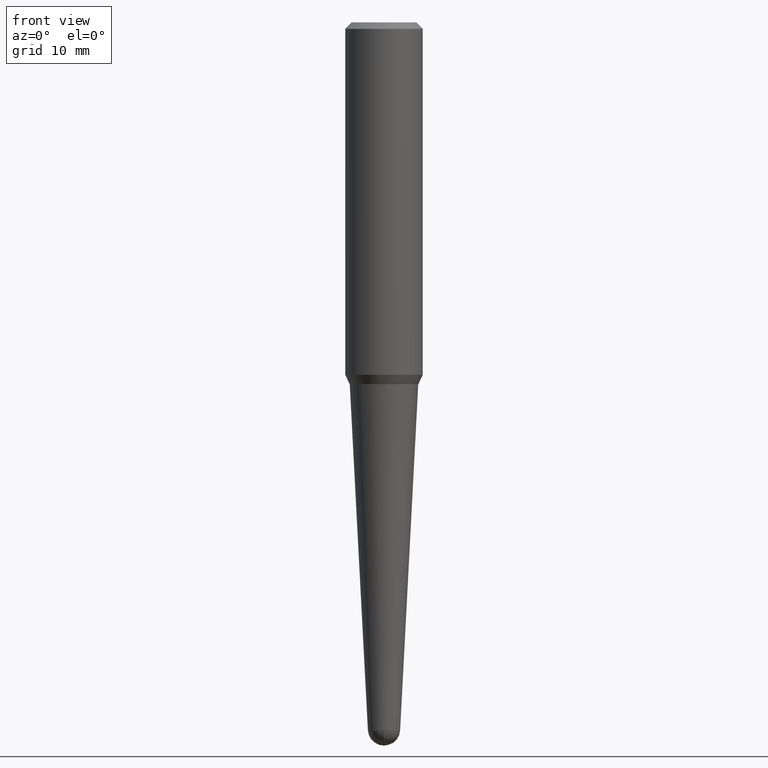
[diagram: clean part render]
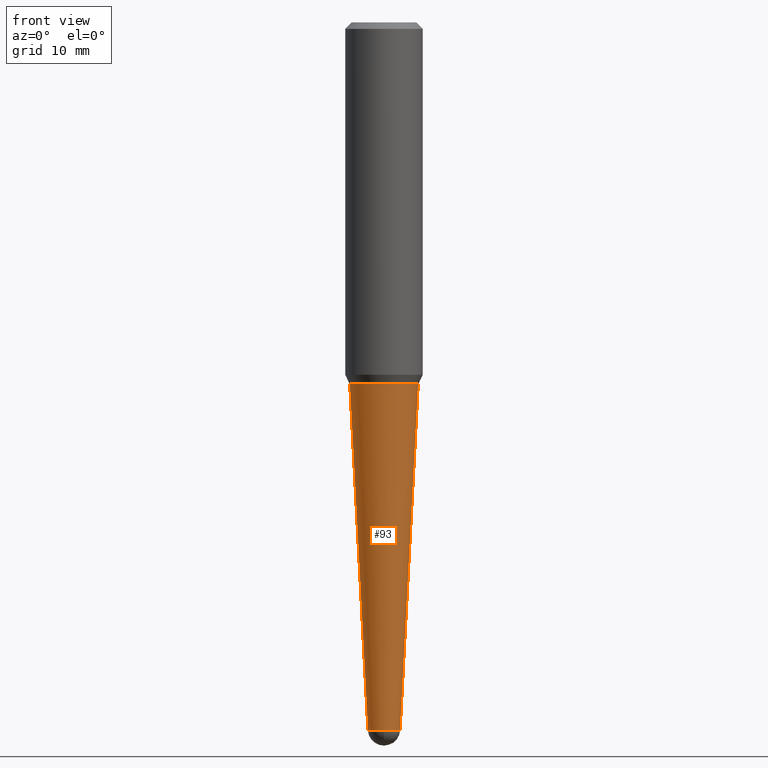
[diagram: same view with one face highlighted and labeled with its STEP entity id]
A machine part, front view. The second image highlights one B-rep face of the part: STEP entity #93.
In plain terms, the highlighted conical surface has half-angle 3 deg.
Its self-contained STEP definition (entity closure, byte-faithful):
#16 = ORIENTED_EDGE ( 'NONE', *, *, #79, .F. ) ;
#23 = VERTEX_POINT ( 'NONE', #306 ) ;
#30 = CARTESIAN_POINT ( 'NONE',  ( -0.1658277464057546224, -4.931815337014735557E-15, -1.750000000000000000 ) ) ;
#33 = DIRECTION ( 'NONE',  ( -2.445468806185136597E-29, 3.491481338843145583E-15, 1.000000000000000000 ) ) ;
#41 = DIRECTION ( 'NONE',  ( -0.05233595624294384158, 3.858565720288028779E-15, 0.9986295347545738332 ) ) ;
#49 = DIRECTION ( 'NONE',  ( -2.445468806185136597E-29, 3.491481338843145583E-15, 1.000000000000000000 ) ) ;
#77 = CARTESIAN_POINT ( 'NONE',  ( -0.07799296666433265524, -1.140759784848827963E-14, -3.425987438182573896 ) ) ;
#79 = EDGE_CURVE ( 'NONE', #381, #357, #443, .T. ) ;
#82 = DIRECTION ( 'NONE',  ( 1.000000000000000000, -6.982962677686263555E-15, 0.000000000000000000 ) ) ;
#84 = VECTOR ( 'NONE', #354, 39.37007874015748854 ) ;
#91 = VERTEX_POINT ( 'NONE', #408 ) ;
#92 = CARTESIAN_POINT ( 'NONE',  ( 8.378145410457613452E-29, -1.196177120752549174E-14, -3.425987438182573896 ) ) ;
#93 = ADVANCED_FACE ( 'NONE', ( #348 ), #298, .T. ) ;
#94 = CARTESIAN_POINT ( 'NONE',  ( 0.1658277464057546224, -7.268061307051711819E-15, -1.750000000000000000 ) ) ;
#96 = DIRECTION ( 'NONE',  ( 1.000000000000000000, -6.982962677686263555E-15, 0.000000000000000000 ) ) ;
#98 = VECTOR ( 'NONE', #41, 39.37007874015748854 ) ;
#121 = CARTESIAN_POINT ( 'NONE',  ( 0.07799296666433265524, -1.250639318286455540E-14, -3.425987438182573896 ) ) ;
#132 = CIRCLE ( 'NONE', #165, 0.07799296666433265524 ) ;
#149 = ORIENTED_EDGE ( 'NONE', *, *, #205, .T. ) ;
#158 = EDGE_LOOP ( 'NONE', ( #391, #442, #422, #149, #16 ) ) ;
#165 = AXIS2_PLACEMENT_3D ( 'NONE', #92, #275, #96 ) ;
#205 = EDGE_CURVE ( 'NONE', #424, #357, #227, .T. ) ;
#208 = AXIS2_PLACEMENT_3D ( 'NONE', #308, #49, #225 ) ;
#225 = DIRECTION ( 'NONE',  ( 1.000000000000000000, -6.982962677686270655E-15, 0.000000000000000000 ) ) ;
#227 = LINE ( 'NONE', #121, #84 ) ;
#242 = CARTESIAN_POINT ( 'NONE',  ( 8.378145410457613452E-29, -1.196177120752549174E-14, -3.425987438182573896 ) ) ;
#253 = LINE ( 'NONE', #77, #98 ) ;
#261 = AXIS2_PLACEMENT_3D ( 'NONE', #242, #33, #389 ) ;
#275 = DIRECTION ( 'NONE',  ( -2.445468806185136597E-29, 3.491481338843145583E-15, 1.000000000000000000 ) ) ;
#276 = EDGE_CURVE ( 'NONE', #91, #424, #132, .T. ) ;
#298 = CONICAL_SURFACE ( 'NONE', #376, 0.07799296666433265524, 0.05235987755982988989 ) ;
#300 = DIRECTION ( 'NONE',  ( -2.445468806185136597E-29, 3.491481338843145583E-15, 1.000000000000000000 ) ) ;
#306 = CARTESIAN_POINT ( 'NONE',  ( -0.07799296666433265524, -8.169706592751506412E-15, -3.425987438182573896 ) ) ;
#308 = CARTESIAN_POINT ( 'NONE',  ( 4.279570410823988484E-29, -6.110092342975504671E-15, -1.750000000000000000 ) ) ;
#316 = CIRCLE ( 'NONE', #261, 0.07799296666433265524 ) ;
#333 = CARTESIAN_POINT ( 'NONE',  ( 0.07799296666433265524, -9.887227244958132819E-15, -3.425987438182573896 ) ) ;
#348 = FACE_OUTER_BOUND ( 'NONE', #158, .T. ) ;
#353 = EDGE_CURVE ( 'NONE', #23, #91, #316, .T. ) ;
#354 = DIRECTION ( 'NONE',  ( 0.05233595624294384158, 3.121236355867708811E-15, 0.9986295347545738332 ) ) ;
#357 = VERTEX_POINT ( 'NONE', #94 ) ;
#376 = AXIS2_PLACEMENT_3D ( 'NONE', #417, #300, #82 ) ;
#381 = VERTEX_POINT ( 'NONE', #30 ) ;
#389 = DIRECTION ( 'NONE',  ( 1.000000000000000000, -6.982962677686263555E-15, 0.000000000000000000 ) ) ;
#391 = ORIENTED_EDGE ( 'NONE', *, *, #431, .F. ) ;
#408 = CARTESIAN_POINT ( 'NONE',  ( -5.541733590371250335E-16, -0.07799296666434415992, -3.425987438182573896 ) ) ;
#417 = CARTESIAN_POINT ( 'NONE',  ( 8.378145410457613452E-29, -1.196177120752549174E-14, -3.425987438182573896 ) ) ;
#422 = ORIENTED_EDGE ( 'NONE', *, *, #276, .T. ) ;
#424 = VERTEX_POINT ( 'NONE', #333 ) ;
#431 = EDGE_CURVE ( 'NONE', #23, #381, #253, .T. ) ;
#442 = ORIENTED_EDGE ( 'NONE', *, *, #353, .T. ) ;
#443 = CIRCLE ( 'NONE', #208, 0.1658277464057546502 ) ;